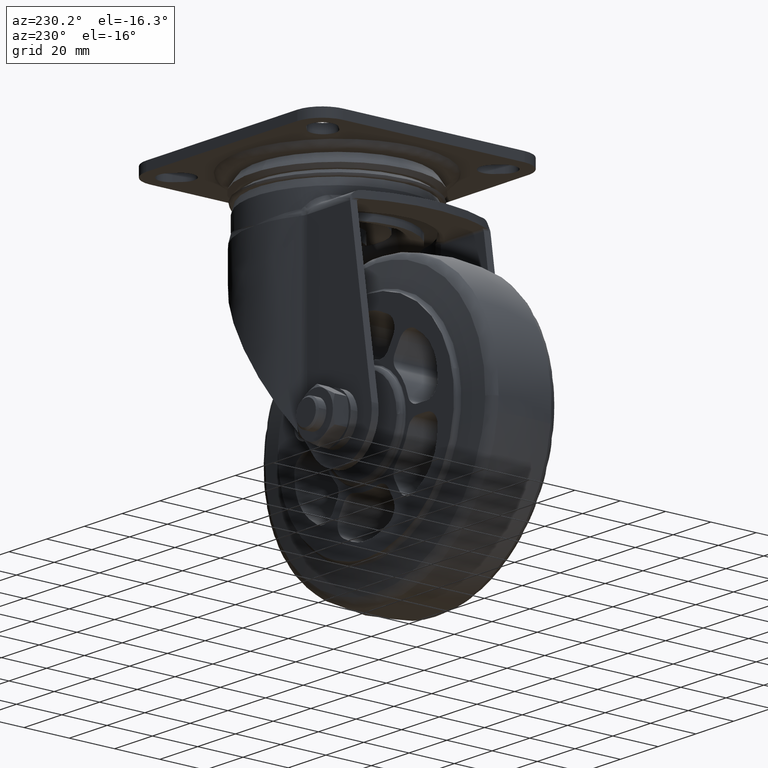
[diagram: clean part render]
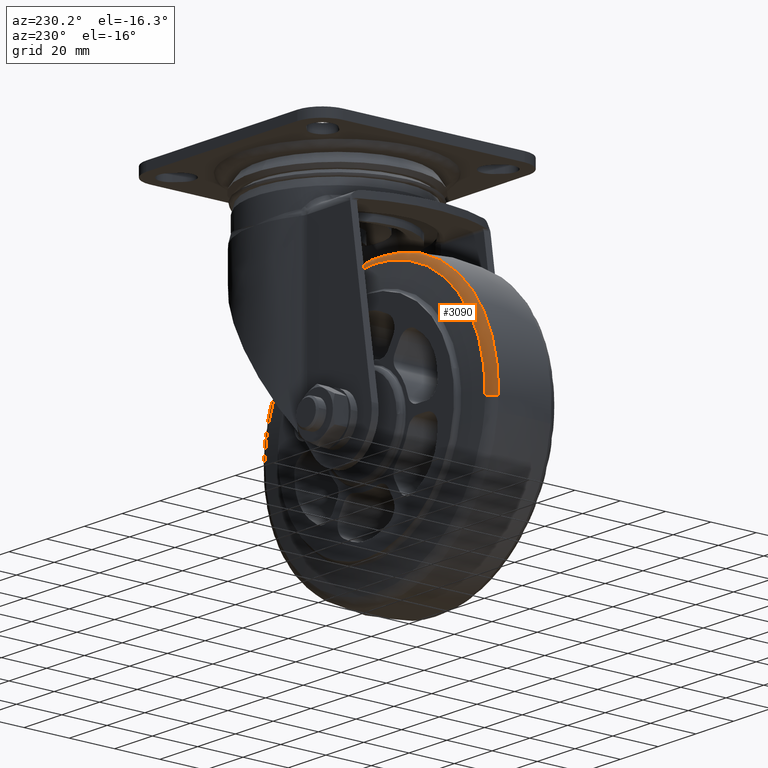
[diagram: same view with one face highlighted and labeled with its STEP entity id]
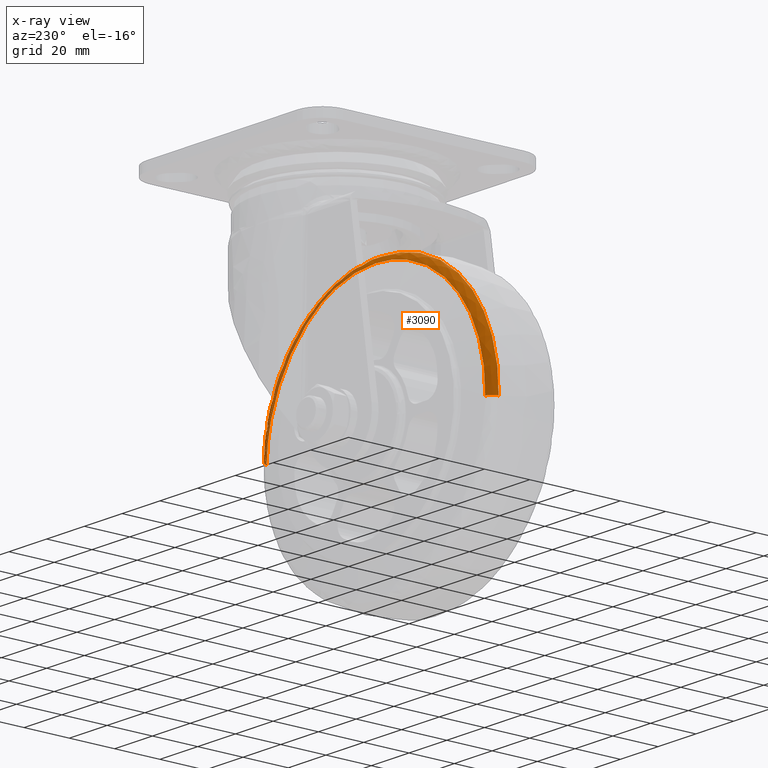
[diagram: x-ray of the same camera — body ghosted, the highlighted face saturated]
A machine part, auxiliary view. The second image highlights one B-rep face of the part: STEP entity #3090.
The next image is the same camera in x-ray: the body ghosted, the highlighted face saturated — about 13% of this face is hidden behind the body in this view.
In plain terms, the highlighted face is a freeform B-spline surface patch.
Its self-contained STEP definition (entity closure, byte-faithful):
#733=CARTESIAN_POINT('',(39.397555647061012,14.931164591959419,42.994887398976701));
#734=VERTEX_POINT('',#733);
#740=CARTESIAN_POINT('',(58.297342139848340,14.931164591188050,1.465480586774421));
#741=VERTEX_POINT('',#740);
#742=CARTESIAN_POINT('',(39.397555647061004,14.931164591959419,42.994887398976701));
#743=CARTESIAN_POINT('',(57.674376753975757,14.931164591622231,26.247266458771964));
#744=CARTESIAN_POINT('',(58.297342139848340,14.931164591188050,1.465480586774420));
#752=(BOUNDED_CURVE()B_SPLINE_CURVE(2,(#742,#743,#744),.UNSPECIFIED.,.F.,.U.)B_SPLINE_CURVE_WITH_KNOTS((3,3),(0.118415209081334,0.245579891768411),.UNSPECIFIED.)CURVE()GEOMETRIC_REPRESENTATION_ITEM()RATIONAL_B_SPLINE_CURVE((0.853959780838293,0.846111621770930,0.989826157678420))REPRESENTATION_ITEM(''));
#753=EDGE_CURVE('',#734,#741,#752,.T.);
#833=CARTESIAN_POINT('',(-58.297342139930009,14.931164591172671,-1.465480586778029));
#834=VERTEX_POINT('',#833);
#848=CARTESIAN_POINT('',(5.684342E-014,14.931164592184080,58.315758876162000));
#849=VERTEX_POINT('',#848);
#850=CARTESIAN_POINT('',(-58.297342139930024,14.931164591172672,-1.465480586778030));
#851=CARTESIAN_POINT('',(-58.315758876161944,14.931164592184086,-0.732856015330292));
#852=CARTESIAN_POINT('',(-58.315758876161937,14.931164592184080,0.0));
#853=CARTESIAN_POINT('',(-58.315758876161937,14.931164592184087,58.315758876161993));
#854=CARTESIAN_POINT('',(5.684342E-014,14.931164592184080,58.315758876162000));
#862=(BOUNDED_CURVE()B_SPLINE_CURVE(2,(#850,#851,#852,#853,#854),.UNSPECIFIED.,.F.,.U.)B_SPLINE_CURVE_WITH_KNOTS((3,2,3),(0.745579891768402,0.750000000000000,1.0),.UNSPECIFIED.)CURVE()GEOMETRIC_REPRESENTATION_ITEM()RATIONAL_B_SPLINE_CURVE((0.989826157678398,0.994821521090173,1.0,0.707106781186548,1.0))REPRESENTATION_ITEM(''));
#863=EDGE_CURVE('',#834,#849,#862,.T.);
#865=CARTESIAN_POINT('',(5.684342E-014,14.931164592184080,58.315758876162000));
#866=CARTESIAN_POINT('',(22.677758358197899,14.931164592184080,58.315758876162000));
#867=CARTESIAN_POINT('',(39.397555647061004,14.931164591959421,42.994887398976694));
#875=(BOUNDED_CURVE()B_SPLINE_CURVE(2,(#865,#866,#867),.UNSPECIFIED.,.F.,.U.)B_SPLINE_CURVE_WITH_KNOTS((3,3),(0.0,0.118415209081334),.UNSPECIFIED.)CURVE()GEOMETRIC_REPRESENTATION_ITEM()RATIONAL_B_SPLINE_CURVE((1.0,0.861267953022800,0.853959780838293))REPRESENTATION_ITEM(''));
#876=EDGE_CURVE('',#849,#734,#875,.T.);
#2951=CARTESIAN_POINT('',(61.501503874966062,11.666644138839450,1.546026914161441));
#2952=VERTEX_POINT('',#2951);
#2953=CARTESIAN_POINT('',(61.501503874966062,11.666644138839448,1.546026914161441));
#2954=CARTESIAN_POINT('',(61.036927523418605,14.416083583107961,1.534348378012344));
#2955=CARTESIAN_POINT('',(58.297342139848340,14.931164591188049,1.465480586774421));
#2963=(BOUNDED_CURVE()B_SPLINE_CURVE(2,(#2953,#2954,#2955),.UNSPECIFIED.,.F.,.U.)B_SPLINE_CURVE_WITH_KNOTS((3,3),(-1.675941427249933,-0.330854152655478),.UNSPECIFIED.)CURVE()GEOMETRIC_REPRESENTATION_ITEM()RATIONAL_B_SPLINE_CURVE((0.902722323769896,0.739871348124316,0.901085100819712))REPRESENTATION_ITEM(''));
#2964=EDGE_CURVE('',#2952,#741,#2963,.T.);
#2998=CARTESIAN_POINT('',(-61.501505904320638,11.666643670810741,-1.546026965210678));
#2999=VERTEX_POINT('',#2998);
#3013=CARTESIAN_POINT('',(-61.501505904320638,11.666643670810743,-1.546026965210679));
#3014=CARTESIAN_POINT('',(-61.036929155373400,14.416083649549856,-1.534348418916606));
#3015=CARTESIAN_POINT('',(-58.297342139930009,14.931164591172672,-1.465480586778029));
#3023=(BOUNDED_CURVE()B_SPLINE_CURVE(2,(#3013,#3014,#3015),.UNSPECIFIED.,.F.,.U.)B_SPLINE_CURVE_WITH_KNOTS((3,3),(-1.675941662539819,-0.330854152704408),.UNSPECIFIED.)CURVE()GEOMETRIC_REPRESENTATION_ITEM()RATIONAL_B_SPLINE_CURVE((0.902722380743439,0.739871319929864,0.901085100807983))REPRESENTATION_ITEM(''));
#3024=EDGE_CURVE('',#2999,#834,#3023,.T.);
#3030=CARTESIAN_POINT('',(-61.532871505741099,11.442648113410545,-1.546815434732938));
#3031=CARTESIAN_POINT('',(-63.079686940474026,11.442648113410547,59.986056071008214));
#3032=CARTESIAN_POINT('',(-1.546815434732886,11.442648113410545,61.532871505741149));
#3033=CARTESIAN_POINT('',(59.986056071008278,11.442648113410547,63.079686940474105));
#3034=CARTESIAN_POINT('',(61.532871505741205,11.442648113410545,1.546815434732946));
#3035=CARTESIAN_POINT('',(-61.185600589004082,14.562481086357973,-1.538085726515233));
#3036=CARTESIAN_POINT('',(-62.723686315519295,14.562481086357973,59.647514862488883));
#3037=CARTESIAN_POINT('',(-1.538085726515180,14.562481086357973,61.185600589004132));
#3038=CARTESIAN_POINT('',(59.647514862488947,14.562481086357973,62.723686315519359));
#3039=CARTESIAN_POINT('',(61.185600589004189,14.562481086357973,1.538085726515240));
#3040=CARTESIAN_POINT('',(-58.073604575957283,14.966698901997209,-1.459856263985453));
#3041=CARTESIAN_POINT('',(-59.533460839942748,14.966698901997210,56.613748311971882));
#3042=CARTESIAN_POINT('',(-1.459856263985401,14.966698901997209,58.073604575957340));
#3043=CARTESIAN_POINT('',(56.613748311971953,14.966698901997210,59.533460839942791));
#3044=CARTESIAN_POINT('',(58.073604575957411,14.966698901997209,1.459856263985459));
#3052=(BOUNDED_SURFACE()B_SPLINE_SURFACE(2,2,((#3030,#3035,#3040),(#3031,#3036,#3041),(#3032,#3037,#3042),(#3033,#3038,#3043),(#3034,#3039,#3044)),.UNSPECIFIED.,.F.,.F.,.U.)B_SPLINE_SURFACE_WITH_KNOTS((3,2,3),(3,3),(0.0,101.983207027458600,203.966414054917100),(0.0,5.528622179255097),.UNSPECIFIED.)GEOMETRIC_REPRESENTATION_ITEM()RATIONAL_B_SPLINE_SURFACE(((0.919799729857441,0.722875674654447,0.917999040814105),(0.650396626315751,0.511150291502960,0.649123346882400),(0.919799729857441,0.722875674654447,0.917999040814105),(0.650396626315751,0.511150291502960,0.649123346882400),(0.919799729857441,0.722875674654447,0.917999040814105)))REPRESENTATION_ITEM('')SURFACE());
#3053=ORIENTED_EDGE('',*,*,#753,.F.);
#3054=ORIENTED_EDGE('',*,*,#876,.F.);
#3055=ORIENTED_EDGE('',*,*,#863,.F.);
#3056=ORIENTED_EDGE('',*,*,#3024,.F.);
#3057=CARTESIAN_POINT('',(5.684342E-014,11.666666393381201,61.520930849022598));
#3058=VERTEX_POINT('',#3057);
#3059=CARTESIAN_POINT('',(-61.501505904320638,11.666643670810736,-1.546026965210679));
#3060=CARTESIAN_POINT('',(-61.520934645206559,11.666643783478024,-0.773135781543794));
#3061=CARTESIAN_POINT('',(-61.520934620138107,11.666643932784620,-0.000000438357845));
#3062=CARTESIAN_POINT('',(-61.520932625358576,11.666655813602812,61.520930642539717));
#3063=CARTESIAN_POINT('',(5.684342E-014,11.666666393381201,61.520930849022598));
#3071=(BOUNDED_CURVE()B_SPLINE_CURVE(2,(#3059,#3060,#3061,#3062,#3063),.UNSPECIFIED.,.F.,.U.)B_SPLINE_CURVE_WITH_KNOTS((3,2,3),(0.745579892759252,0.750000000000000,1.0),.UNSPECIFIED.)CURVE()GEOMETRIC_REPRESENTATION_ITEM()RATIONAL_B_SPLINE_CURVE((0.989826159918009,0.994821522251027,1.0,0.707106781186548,1.0))REPRESENTATION_ITEM(''));
#3072=EDGE_CURVE('',#2999,#3058,#3071,.T.);
#3073=ORIENTED_EDGE('',*,*,#3072,.T.);
#3074=CARTESIAN_POINT('',(5.684342E-014,11.666666393381201,61.520930849022598));
#3075=CARTESIAN_POINT('',(59.993848004941611,11.666666570372758,61.520930875307087));
#3076=CARTESIAN_POINT('',(61.501503874966069,11.666644138839446,1.546026914161441));
#3084=(BOUNDED_CURVE()B_SPLINE_CURVE(2,(#3074,#3075,#3076),.UNSPECIFIED.,.F.,.U.)B_SPLINE_CURVE_WITH_KNOTS((3,3),(0.0,0.245579880904024),.UNSPECIFIED.)CURVE()GEOMETRIC_REPRESENTATION_ITEM()RATIONAL_B_SPLINE_CURVE((1.0,0.712285272824785,0.989826133121753))REPRESENTATION_ITEM(''));
#3085=EDGE_CURVE('',#3058,#2952,#3084,.T.);
#3086=ORIENTED_EDGE('',*,*,#3085,.T.);
#3087=ORIENTED_EDGE('',*,*,#2964,.T.);
#3088=EDGE_LOOP('',(#3053,#3054,#3055,#3056,#3073,#3086,#3087));
#3089=FACE_OUTER_BOUND('',#3088,.T.);
#3090=ADVANCED_FACE('',(#3089),#3052,.T.);